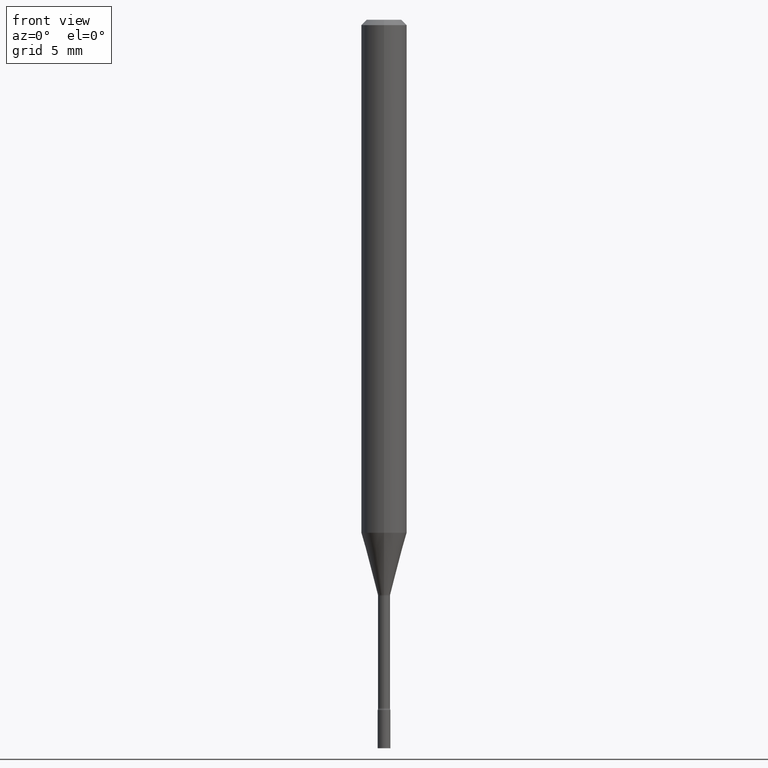
[diagram: clean part render]
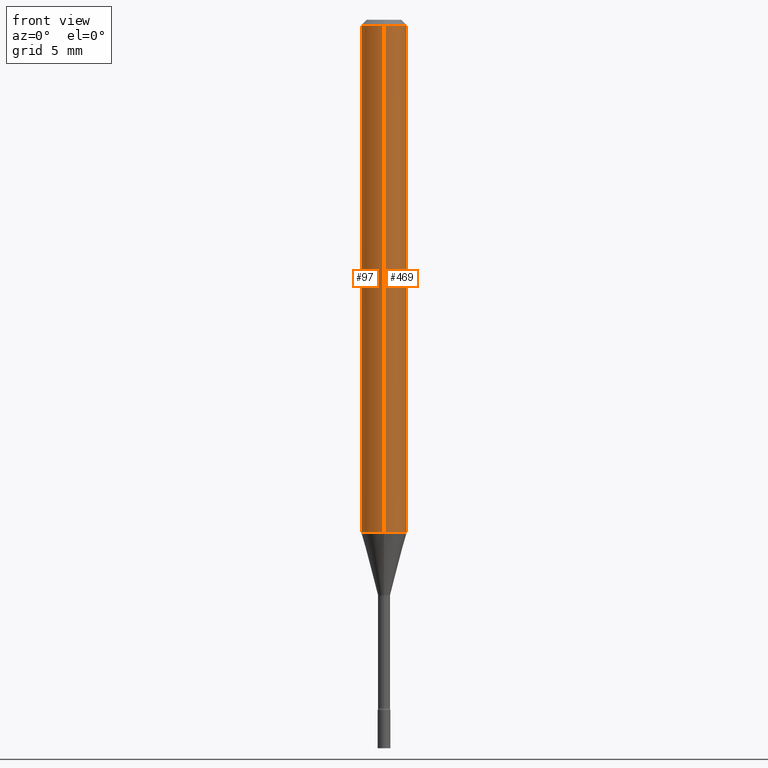
[diagram: same view with one multi-face feature highlighted, each face labeled with its STEP entity id]
A machine part, front view. The highlighted faces form ONE feature: a constant-radius fillet chain: 2 tangent blend faces with common blend radius 1.5875 mm. The faces share edges in the B-rep.
Their STEP definitions:
[1] entity #97 (Cylinder):
#33 = DIRECTION ( 'NONE',  ( -6.982962677686265922E-15, -1.000000000000000000, 3.483106191921935554E-15 ) ) ;
#34 = VERTEX_POINT ( 'NONE', #495 ) ;
#35 = EDGE_CURVE ( 'NONE', #257, #34, #336, .T. ) ;
#43 = VERTEX_POINT ( 'NONE', #176 ) ;
#57 = AXIS2_PLACEMENT_3D ( 'NONE', #275, #366, #443 ) ;
#58 = DIRECTION ( 'NONE',  ( -2.445498038093453575E-29, 3.491439477086658862E-15, 1.000000000000000000 ) ) ;
#73 = AXIS2_PLACEMENT_3D ( 'NONE', #477, #163, #33 ) ;
#82 = CARTESIAN_POINT ( 'NONE',  ( -4.364351673553573540E-16, -0.06250000000000494049, -1.408139060311453195 ) ) ;
#95 = CARTESIAN_POINT ( 'NONE',  ( 0.000000000000000000, 0.000000000000000000, 0.000000000000000000 ) ) ;
#97 = ADVANCED_FACE ( 'NONE', ( #206 ), #412, .T. ) ;
#99 = LINE ( 'NONE', #488, #227 ) ;
#111 = EDGE_CURVE ( 'NONE', #409, #43, #99, .T. ) ;
#157 = ORIENTED_EDGE ( 'NONE', *, *, #371, .T. ) ;
#163 = DIRECTION ( 'NONE',  ( -2.445498038093453575E-29, 3.491439477086658862E-15, 1.000000000000000000 ) ) ;
#176 = CARTESIAN_POINT ( 'NONE',  ( -4.364351673553912750E-16, -0.06250000000000005551, -0.01499999999999981209 ) ) ;
#177 = EDGE_LOOP ( 'NONE', ( #446, #157, #365, #501 ) ) ;
#206 = FACE_OUTER_BOUND ( 'NONE', #177, .T. ) ;
#214 = DIRECTION ( 'NONE',  ( -6.982962677686265922E-15, -1.000000000000000000, 3.491439477086658862E-15 ) ) ;
#227 = VECTOR ( 'NONE', #379, 39.37007874015748143 ) ;
#257 = VERTEX_POINT ( 'NONE', #307 ) ;
#275 = CARTESIAN_POINT ( 'NONE',  ( 3.443601309354418931E-29, -4.916432304399119598E-15, -1.408139060311453417 ) ) ;
#280 = CIRCLE ( 'NONE', #57, 0.06250000000000000000 ) ;
#307 = CARTESIAN_POINT ( 'NONE',  ( 4.440892098500969316E-16, 0.06249999999999507339, -1.408139060311453639 ) ) ;
#336 = LINE ( 'NONE', #420, #421 ) ;
#351 = CIRCLE ( 'NONE', #73, 0.06250000000000000000 ) ;
#365 = ORIENTED_EDGE ( 'NONE', *, *, #111, .T. ) ;
#366 = DIRECTION ( 'NONE',  ( -2.445498038093453575E-29, 3.491439477086658862E-15, 1.000000000000000000 ) ) ;
#371 = EDGE_CURVE ( 'NONE', #257, #409, #280, .T. ) ;
#379 = DIRECTION ( 'NONE',  ( -2.445498038093453295E-29, 3.491439477086658862E-15, 1.000000000000000000 ) ) ;
#393 = AXIS2_PLACEMENT_3D ( 'NONE', #95, #58, #214 ) ;
#409 = VERTEX_POINT ( 'NONE', #82 ) ;
#412 = CYLINDRICAL_SURFACE ( 'NONE', #393, 0.06250000000000000000 ) ;
#418 = DIRECTION ( 'NONE',  ( -2.445498038093453295E-29, 3.491439477086658862E-15, 1.000000000000000000 ) ) ;
#420 = CARTESIAN_POINT ( 'NONE',  ( 4.440892098500625669E-16, 0.06250000000000000000, -2.182149673179161788E-16 ) ) ;
#421 = VECTOR ( 'NONE', #418, 39.37007874015748143 ) ;
#440 = EDGE_CURVE ( 'NONE', #34, #43, #351, .T. ) ;
#443 = DIRECTION ( 'NONE',  ( -6.982962677686265922E-15, -1.000000000000000000, 4.370956789862821150E-15 ) ) ;
#446 = ORIENTED_EDGE ( 'NONE', *, *, #35, .F. ) ;
#477 = CARTESIAN_POINT ( 'NONE',  ( 3.668247057140187510E-31, -5.237159215629998202E-17, -0.01500000000000003067 ) ) ;
#488 = CARTESIAN_POINT ( 'NONE',  ( -4.364351673553916201E-16, -0.06250000000000000000, 2.182149673179161788E-16 ) ) ;
#495 = CARTESIAN_POINT ( 'NONE',  ( 4.440892098500972274E-16, 0.06249999999999993755, -0.01500000000000024751 ) ) ;
#501 = ORIENTED_EDGE ( 'NONE', *, *, #440, .F. ) ;
[2] entity #469 (Cylinder):
#10 = AXIS2_PLACEMENT_3D ( 'NONE', #101, #261, #152 ) ;
#12 = CIRCLE ( 'NONE', #345, 0.06250000000000000000 ) ;
#34 = VERTEX_POINT ( 'NONE', #495 ) ;
#35 = EDGE_CURVE ( 'NONE', #257, #34, #336, .T. ) ;
#43 = VERTEX_POINT ( 'NONE', #176 ) ;
#78 = CYLINDRICAL_SURFACE ( 'NONE', #90, 0.06250000000000000000 ) ;
#82 = CARTESIAN_POINT ( 'NONE',  ( -4.364351673553573540E-16, -0.06250000000000494049, -1.408139060311453195 ) ) ;
#90 = AXIS2_PLACEMENT_3D ( 'NONE', #435, #511, #156 ) ;
#99 = LINE ( 'NONE', #488, #227 ) ;
#101 = CARTESIAN_POINT ( 'NONE',  ( 3.668247057140187510E-31, -5.237159215629998202E-17, -0.01500000000000003067 ) ) ;
#111 = EDGE_CURVE ( 'NONE', #409, #43, #99, .T. ) ;
#114 = DIRECTION ( 'NONE',  ( -6.982962677686265922E-15, -1.000000000000000000, 4.370956789862821150E-15 ) ) ;
#152 = DIRECTION ( 'NONE',  ( -6.982962677686265922E-15, -1.000000000000000000, 3.483106191921935554E-15 ) ) ;
#156 = DIRECTION ( 'NONE',  ( -6.982962677686265922E-15, -1.000000000000000000, 3.491439477086658862E-15 ) ) ;
#176 = CARTESIAN_POINT ( 'NONE',  ( -4.364351673553912750E-16, -0.06250000000000005551, -0.01499999999999981209 ) ) ;
#191 = FACE_OUTER_BOUND ( 'NONE', #274, .T. ) ;
#217 = EDGE_CURVE ( 'NONE', #43, #34, #314, .T. ) ;
#225 = ORIENTED_EDGE ( 'NONE', *, *, #217, .F. ) ;
#227 = VECTOR ( 'NONE', #379, 39.37007874015748143 ) ;
#257 = VERTEX_POINT ( 'NONE', #307 ) ;
#261 = DIRECTION ( 'NONE',  ( -2.445498038093453575E-29, 3.491439477086658862E-15, 1.000000000000000000 ) ) ;
#274 = EDGE_LOOP ( 'NONE', ( #400, #518, #225, #492 ) ) ;
#307 = CARTESIAN_POINT ( 'NONE',  ( 4.440892098500969316E-16, 0.06249999999999507339, -1.408139060311453639 ) ) ;
#311 = CARTESIAN_POINT ( 'NONE',  ( 3.443601309354418931E-29, -4.916432304399119598E-15, -1.408139060311453417 ) ) ;
#314 = CIRCLE ( 'NONE', #10, 0.06250000000000000000 ) ;
#336 = LINE ( 'NONE', #420, #421 ) ;
#345 = AXIS2_PLACEMENT_3D ( 'NONE', #311, #519, #114 ) ;
#379 = DIRECTION ( 'NONE',  ( -2.445498038093453295E-29, 3.491439477086658862E-15, 1.000000000000000000 ) ) ;
#400 = ORIENTED_EDGE ( 'NONE', *, *, #410, .T. ) ;
#409 = VERTEX_POINT ( 'NONE', #82 ) ;
#410 = EDGE_CURVE ( 'NONE', #409, #257, #12, .T. ) ;
#418 = DIRECTION ( 'NONE',  ( -2.445498038093453295E-29, 3.491439477086658862E-15, 1.000000000000000000 ) ) ;
#420 = CARTESIAN_POINT ( 'NONE',  ( 4.440892098500625669E-16, 0.06250000000000000000, -2.182149673179161788E-16 ) ) ;
#421 = VECTOR ( 'NONE', #418, 39.37007874015748143 ) ;
#435 = CARTESIAN_POINT ( 'NONE',  ( 0.000000000000000000, 0.000000000000000000, 0.000000000000000000 ) ) ;
#469 = ADVANCED_FACE ( 'NONE', ( #191 ), #78, .T. ) ;
#488 = CARTESIAN_POINT ( 'NONE',  ( -4.364351673553916201E-16, -0.06250000000000000000, 2.182149673179161788E-16 ) ) ;
#492 = ORIENTED_EDGE ( 'NONE', *, *, #111, .F. ) ;
#495 = CARTESIAN_POINT ( 'NONE',  ( 4.440892098500972274E-16, 0.06249999999999993755, -0.01500000000000024751 ) ) ;
#511 = DIRECTION ( 'NONE',  ( -2.445498038093453575E-29, 3.491439477086658862E-15, 1.000000000000000000 ) ) ;
#518 = ORIENTED_EDGE ( 'NONE', *, *, #35, .T. ) ;
#519 = DIRECTION ( 'NONE',  ( -2.445498038093453575E-29, 3.491439477086658862E-15, 1.000000000000000000 ) ) ;